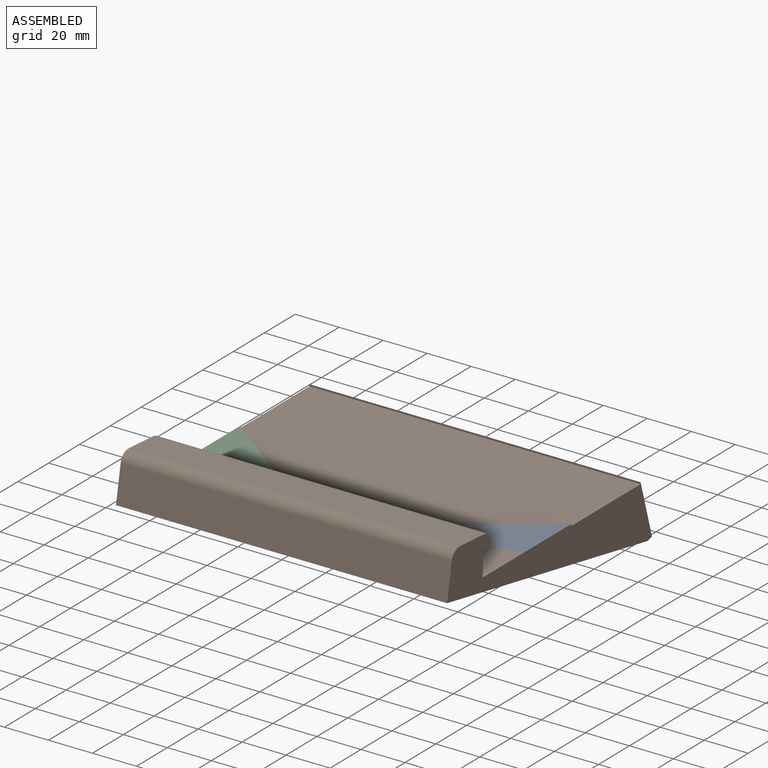
[diagram: assembled view]
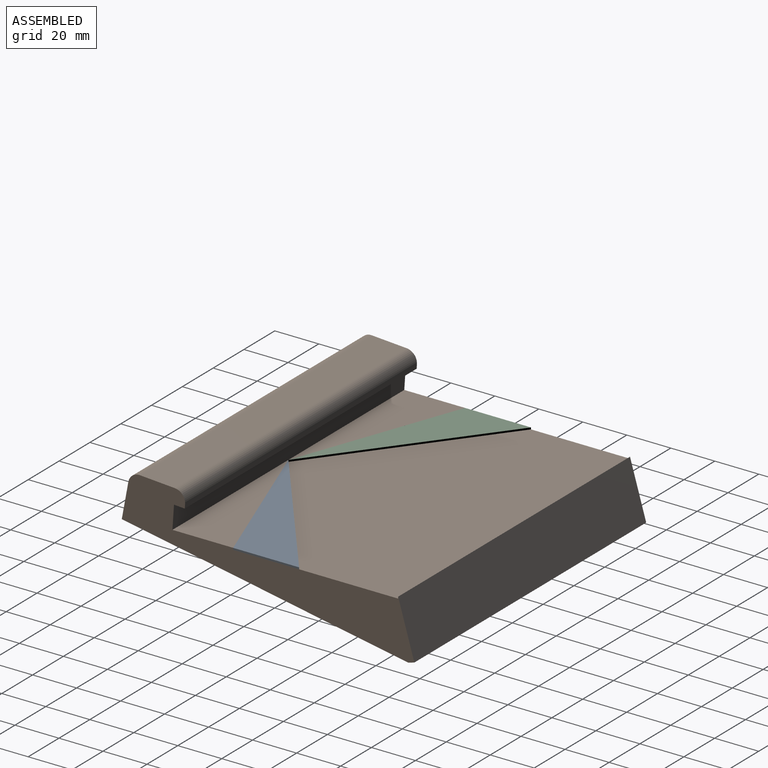
[diagram: assembled view, second angle]
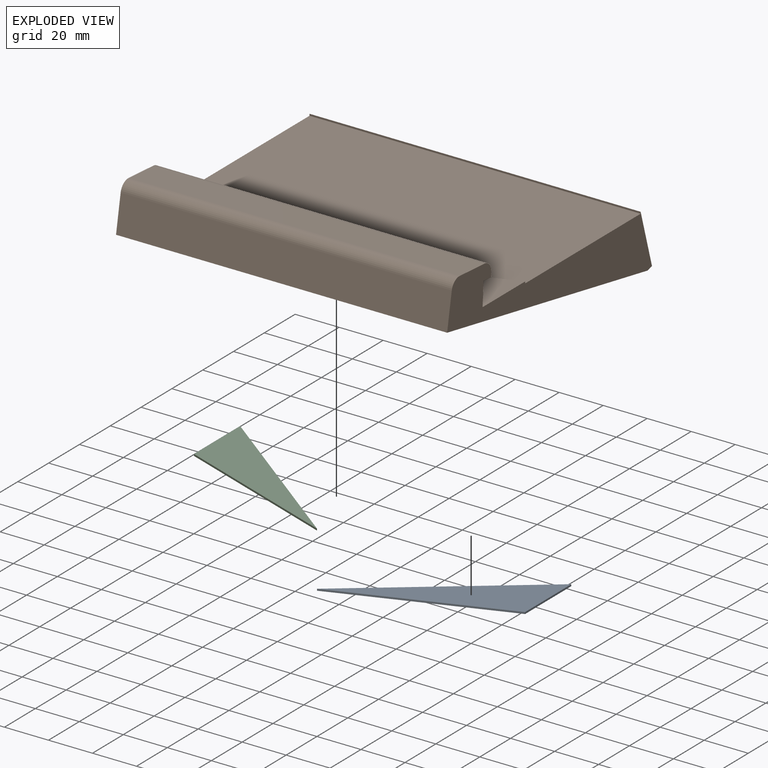
[diagram: exploded view]
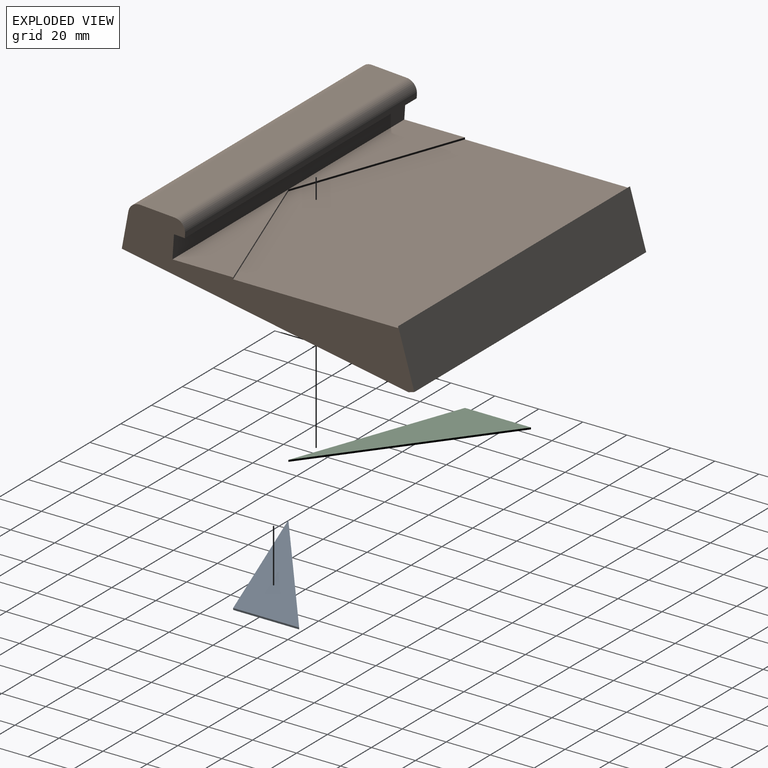
[diagram: exploded view, second angle]
ASSEMBLY  parts=3 mates=2
PART A: 5 faces, bbox 75.2x57.6x0.8 mm
  f0: plane 75.24x57.59mm, normal (-0.61,0.79,0), area 75.8mm2, adj f1,f2,f3,f4
  f1: plane 75.24x27.59mm, normal (0.34,-0.94,0), area 64.1mm2, adj f0,f2,f3,f4
  f2: plane 30x0.8mm, normal (1,0,0), area 24mm2, adj f0,f1,f3,f4
  f3: plane 75.24x57.59mm, normal (0,0,1), area 1128.6mm2, adj f0,f1,f2
  f4: plane 75.24x57.59mm, normal (0,0,-1), area 1128.6mm2, adj f0,f1,f2
PART B: 18 faces, bbox 150.5x77.3x121 mm
  f0: plane 75.24x26.47mm, normal (0,-0.96,0.28), area 1038mm2, adj f1,f8,f14
  f1: plane 121x77.27mm, normal (-1,0,0), area 2131mm2, adj f0,f2,f4,f5,f6,f8,f9,f10
  f2: plane 150.48x118.13mm, normal (0,0.89,-0.45), area 19930mm2, adj f1,f3,f4,f11
  f3: plane 121x77.27mm, normal (1,0,0), area 2131mm2, adj f2,f4,f5,f6,f7,f8,f9,f10
  f4: plane 150.48x2.87mm, normal (0,1,0), area 431.8mm2, adj f1,f2,f3,f5
  f5: plane 150.48x26.14mm, normal (0,0,1), area 3933.7mm2, adj f1,f3,f4,f16
  f6: plane 150.48x14.92mm, normal (0,-0.94,0.35), area 2392.3mm2, adj f1,f3,f12,f13
  f7: plane 75.24x26.47mm, normal (0,-0.96,0.28), area 1038mm2, adj f3,f8,f15
  f8: plane 150.48x9.92mm, normal (0,0.35,0.94), area 1590.9mm2, adj f0,f1,f3,f7,f9
  f9: plane 150.48x4.63mm, normal (0,0.94,-0.35), area 741.7mm2, adj f1,f3,f8,f10
  f10: plane 150.48x1.78mm, normal (0,0.35,0.94), area 286mm2, adj f1,f3,f9,f13
  f11: plane 150.48x14.64mm, normal (0,-0.45,-0.89), area 2470.3mm2, adj f1,f2,f3,f12
  f12: cylinder r=5mm len=150.48mm, axis (1,0,0), area 1094.2mm2, adj f1,f3,f6,f11
  f13: cylinder r=5mm len=150.48mm, axis (-1,0,0), area 1181.9mm2, adj f1,f3,f6,f10
  f14: plane 75.24x26.7mm, normal (0.34,0.26,0.9), area 64.1mm2, adj f0,f1,f15,f17
  f15: plane 75.24x26.7mm, normal (-0.34,0.26,0.9), area 64.1mm2, adj f3,f7,f14,f17
  f16: plane 150.48x0.77mm, normal (0,-0.28,-0.96), area 120.4mm2, adj f1,f3,f5,f17
  f17: plane 150.48x98.44mm, normal (0,-0.96,0.28), area 13362.4mm2, adj f1,f3,f14,f15,f16
PART C: 5 faces, bbox 75.2x57.6x0.8 mm
  f0: plane 75.24x27.59mm, normal (-0.34,-0.94,0), area 64.1mm2, adj f1,f2,f3,f4
  f1: plane 75.24x57.59mm, normal (0.61,0.79,0), area 75.8mm2, adj f0,f2,f3,f4
  f2: plane 30x0.8mm, normal (-1,0,0), area 24mm2, adj f0,f1,f3,f4
  f3: plane 75.24x57.59mm, normal (0,0,1), area 1128.6mm2, adj f0,f1,f2
  f4: plane 75.24x57.59mm, normal (0,0,-1), area 1128.6mm2, adj f0,f1,f2
PLACE A t=(-27.63,21.19,17.17)mm
PLACE B rot(axis=(-1,0,0),73.6deg) t=(-27.07,-78.97,-7.52)mm
PLACE C t=(-27.63,21.19,17.17)mm
MATE fastened C.f3 <-> B.f0  axis (0,0,1) through (-102.32,-5.12,17.97)mm
MATE fastened B.f7 <-> A.f3  axis (0,0,1) through (48.17,-5.12,17.97)mm
